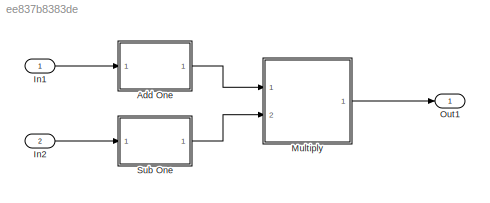
MODEL slx_ee837b8383de
KIND model
CONFIG AbsTol = auto
CONFIG EnableMultiTasking = off
CONFIG FixedStep = auto
CONFIG MaxStep = auto
CONFIG MinStep = auto
CONFIG RelTol = 1e-3
CONFIG SampleTimeConstraint = Unconstrained
CONFIG Solver = VariableStepAuto
CONFIG SolverName = VariableStepAuto
CONFIG StartTime = 0.0
CONFIG StopTime = 10.0
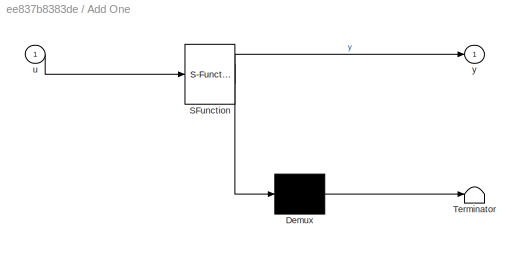
BLOCK [SubSystem] Add One
  ErrorFcn = Stateflow.Translate.translate
  PermitHierarchicalResolution = ExplicitOnly
  Ports = [1, 1]
  RequestExecContextInheritance = off
  SFBlockType = MATLAB Function
  TreatAsAtomicUnit = on
  Variant = off
BLOCK [Demux] Add One/ Demux 
  Outputs = 1
  Ports = [1, 1]
BLOCK [S-Function] Add One/ SFunction 
  EnableBusSupport = on
  FunctionName = sf_sfun
  PortCounts = [1 2]
  Ports = [1, 2]
  SFcnIsStateOwnerBlock = off
  SFunctionDeploymentMode = off
  Tag = Stateflow S-Function test1 2
BLOCK [Terminator] Add One/ Terminator 
BLOCK [Inport] Add One/u
  IconDisplay = Port number
BLOCK [Outport] Add One/y
  IconDisplay = Port number
BLOCK [Inport] In1
  IconDisplay = Port number
BLOCK [Inport] In2
  IconDisplay = Port number
  Port = 2
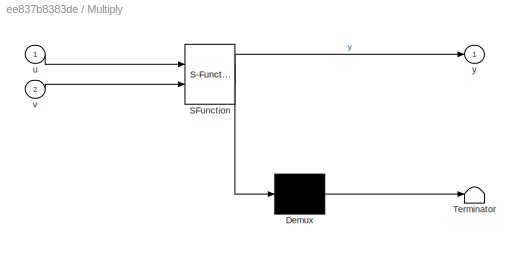
BLOCK [SubSystem] Multiply
  ErrorFcn = Stateflow.Translate.translate
  PermitHierarchicalResolution = ExplicitOnly
  Ports = [2, 1]
  RequestExecContextInheritance = off
  SFBlockType = MATLAB Function
  TreatAsAtomicUnit = on
  Variant = off
BLOCK [Demux] Multiply/ Demux 
  Outputs = 1
  Ports = [1, 1]
BLOCK [S-Function] Multiply/ SFunction 
  EnableBusSupport = on
  FunctionName = sf_sfun
  PortCounts = [2 2]
  Ports = [2, 2]
  SFcnIsStateOwnerBlock = off
  SFunctionDeploymentMode = off
  Tag = Stateflow S-Function test1 3
BLOCK [Terminator] Multiply/ Terminator 
BLOCK [Inport] Multiply/u
  IconDisplay = Port number
BLOCK [Inport] Multiply/v
  IconDisplay = Port number
  Port = 2
BLOCK [Outport] Multiply/y
  IconDisplay = Port number
BLOCK [Outport] Out1
  IconDisplay = Port number
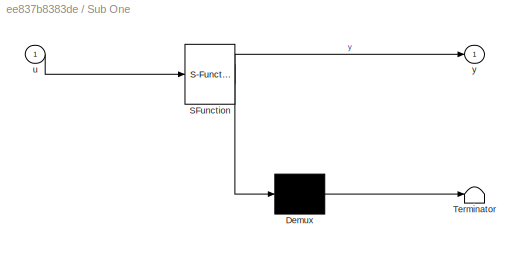
BLOCK [SubSystem] Sub One
  ErrorFcn = Stateflow.Translate.translate
  PermitHierarchicalResolution = ExplicitOnly
  Ports = [1, 1]
  RequestExecContextInheritance = off
  SFBlockType = MATLAB Function
  TreatAsAtomicUnit = on
  Variant = off
BLOCK [Demux] Sub One/ Demux 
  Outputs = 1
  Ports = [1, 1]
BLOCK [S-Function] Sub One/ SFunction 
  EnableBusSupport = on
  FunctionName = sf_sfun
  PortCounts = [1 2]
  Ports = [1, 2]
  SFcnIsStateOwnerBlock = off
  SFunctionDeploymentMode = off
  Tag = Stateflow S-Function test1 1
BLOCK [Terminator] Sub One/ Terminator 
BLOCK [Inport] Sub One/u
  IconDisplay = Port number
BLOCK [Outport] Sub One/y
  IconDisplay = Port number
LINE Add One:1 -> Multiply:1
LINE In1:1 -> Add One:1
LINE In2:1 -> Sub One:1
LINE Multiply:1 -> Out1:1
LINE Sub One:1 -> Multiply:2
CHART Sub One states=1 transitions=1
  STATE_LABEL 'eML_blk_kernel()'
  STATE_LABEL 'SCRIPT:\nfunction y = sub_one(u)\n\ny = u - 1;\n'
CHART Add One states=1 transitions=1
  STATE_LABEL 'eML_blk_kernel()'
  STATE_LABEL 'SCRIPT:\nfunction y = add_one(u)\n\ny = u + 1;\n'
CHART Multiply states=1 transitions=1
  STATE_LABEL 'eML_blk_kernel()'
  STATE_LABEL 'SCRIPT:\nfunction y = my_multiply(u, v)\n\ny = u * v;\n'
